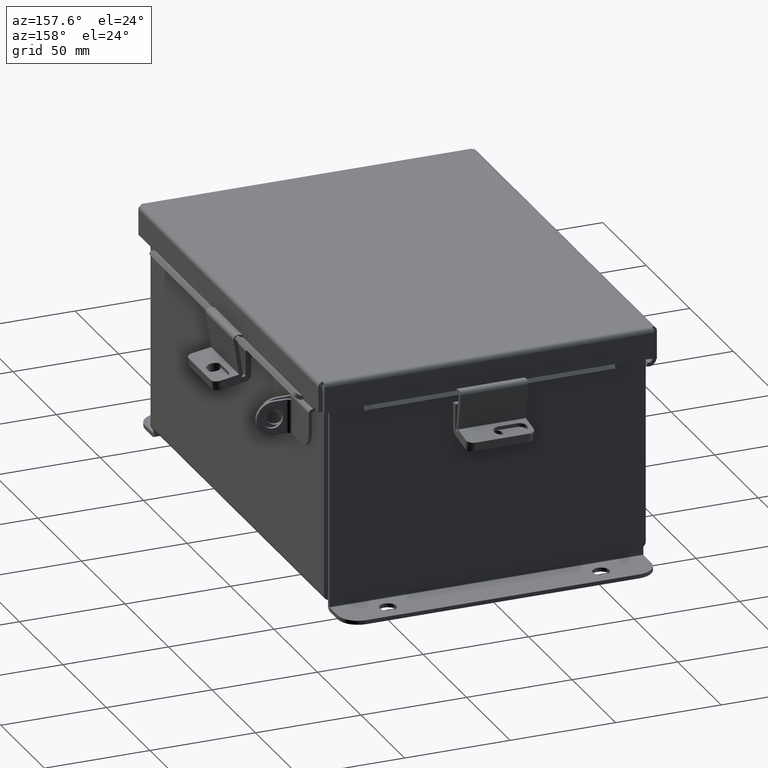
[diagram: clean part render]
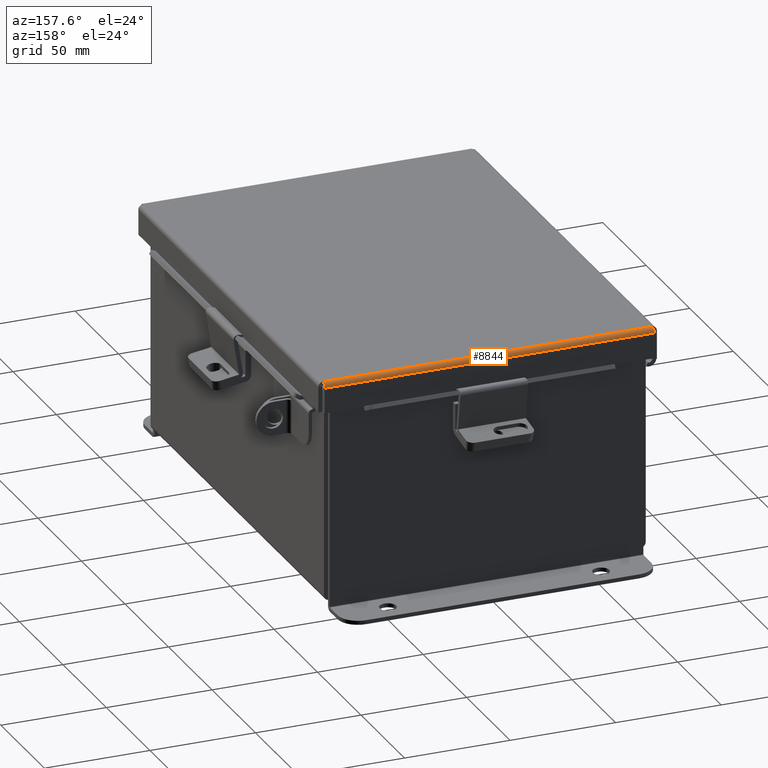
[diagram: same view with one face highlighted and labeled with its STEP entity id]
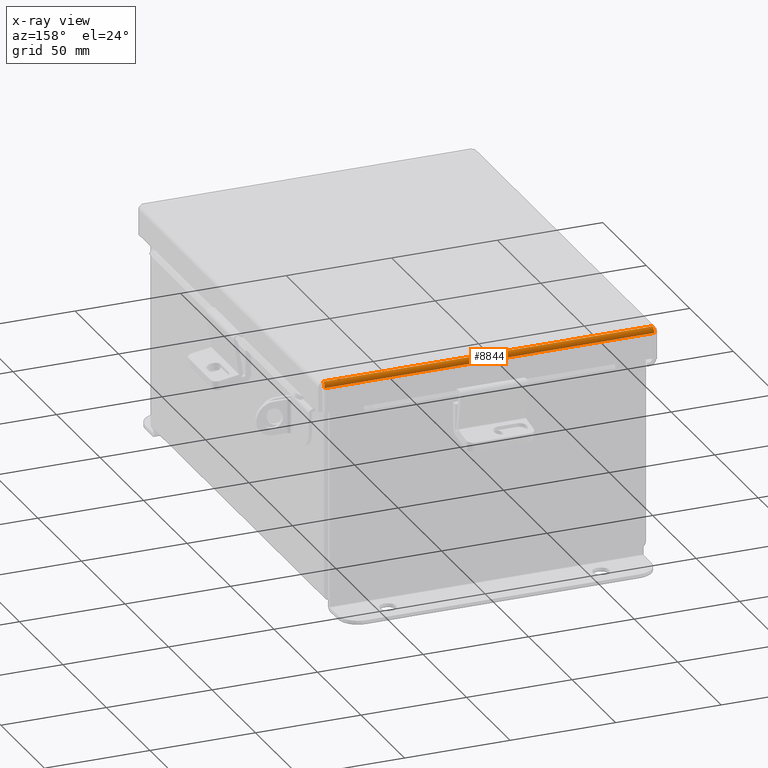
[diagram: x-ray of the same camera — body ghosted, the highlighted face saturated]
A machine part, auxiliary view. The second image highlights one B-rep face of the part: STEP entity #8844.
The next image is the same camera in x-ray: the body ghosted, the highlighted face saturated — about 0% of this face is hidden behind the body in this view.
In plain terms, the highlighted cylindrical surface (edge-blend (fillet) strip) has radius 2.2276 mm, axis along (1, -0, 0).
Its self-contained STEP definition (entity closure, byte-faithful):
#307 = CARTESIAN_POINT ( 'NONE',  ( -3.074478932188133800, 4.068550000000001900, 0.01300000000000065300 ) ) ;
#309 = CARTESIAN_POINT ( 'NONE',  ( 3.074478932188136100, 4.156250000000002700, 0.01300000000000393200 ) ) ;
#487 = VERTEX_POINT ( 'NONE', #9760 ) ;
#792 = EDGE_CURVE ( 'NONE', #13188, #15157, #14006, .T. ) ;
#1190 = CARTESIAN_POINT ( 'NONE',  ( -3.070526310729377400, 4.112717384578529900, -0.06363106625866792000 ) ) ;
#2013 = DIRECTION ( 'NONE',  ( 1.000000000000000000, -2.239330294933626500E-032, -0.0000000000000000000 ) ) ;
#2383 = CARTESIAN_POINT ( 'NONE',  ( -3.069044077682344000, 4.080029903154994900, -0.07469999999999944700 ) ) ;
#2394 = CARTESIAN_POINT ( 'NONE',  ( -3.072008543776410900, 4.138680782078322900, -0.04089574734179957100 ) ) ;
#2657 = CARTESIAN_POINT ( 'NONE',  ( 3.068550000000001000, 4.068550000000001900, -0.07469999999999579800 ) ) ;
#2688 = B_SPLINE_CURVE_WITH_KNOTS ( 'NONE', 3,
 ( #11792, #3525, #14216, #7119, #2394, #8310, #1190, #9519, #2383, #10714 ),
 .UNSPECIFIED., .F., .F.,
 ( 4, 2, 2, 2, 4 ),
 ( 0.0000000000000000000, 0.2500000000000000000, 0.5000000000000000000, 0.7500000000000000000, 1.000000000000000000 ),
 .UNSPECIFIED. ) ;
#2780 = ORIENTED_EDGE ( 'NONE', *, *, #5511, .F. ) ;
#3329 = ORIENTED_EDGE ( 'NONE', *, *, #792, .T. ) ;
#3525 = CARTESIAN_POINT ( 'NONE',  ( -3.073984854505788200, 4.156250000000001800, 0.001520096845007665500 ) ) ;
#3855 = CARTESIAN_POINT ( 'NONE',  ( 3.069538155364690100, 4.091505289458310400, -0.07241740374381074000 ) ) ;
#4377 = VERTEX_POINT ( 'NONE', #12984 ) ;
#4839 = B_SPLINE_CURVE_WITH_KNOTS ( 'NONE', 3,
 ( #2657, #10980, #3855, #12158, #5064, #13326, #6248, #14531, #7447, #309 ),
 .UNSPECIFIED., .F., .F.,
 ( 4, 2, 2, 2, 4 ),
 ( 0.0000000000000000000, 0.2500000000000000000, 0.5000000000000000000, 0.7500000000000000000, 1.000000000000000000 ),
 .UNSPECIFIED. ) ;
#4999 = EDGE_CURVE ( 'NONE', #487, #15157, #4839, .T. ) ;
#5064 = CARTESIAN_POINT ( 'NONE',  ( 3.071020388411724400, 4.122445747341802600, -0.05713078207831989700 ) ) ;
#5119 = EDGE_LOOP ( 'NONE', ( #2780, #13478, #3329, #6356 ) ) ;
#5511 = EDGE_CURVE ( 'NONE', #4377, #487, #13868, .T. ) ;
#5788 = CYLINDRICAL_SURFACE ( 'NONE', #9310, 0.08770000000000026400 ) ;
#6245 = DIRECTION ( 'NONE',  ( 0.0000000000000000000, 1.000000000000000000, -3.358350761880586900E-015 ) ) ;
#6248 = CARTESIAN_POINT ( 'NONE',  ( 3.072502621458758300, 4.145181066258671400, -0.03116738457852745100 ) ) ;
#6356 = ORIENTED_EDGE ( 'NONE', *, *, #4999, .F. ) ;
#7119 = CARTESIAN_POINT ( 'NONE',  ( -3.072502621458755200, 4.145181066258670600, -0.03116738457852744400 ) ) ;
#7447 = CARTESIAN_POINT ( 'NONE',  ( 3.073984854505792200, 4.156250000000002700, 0.001520096845007668700 ) ) ;
#7588 = VECTOR ( 'NONE', #8256, 39.37007874015748100 ) ;
#8256 = DIRECTION ( 'NONE',  ( 1.000000000000000000, 2.258600338820354400E-033, -0.0000000000000000000 ) ) ;
#8310 = CARTESIAN_POINT ( 'NONE',  ( -3.071020388411722200, 4.122445747341801700, -0.05713078207831989000 ) ) ;
#8844 = ADVANCED_FACE ( 'NONE', ( #15227 ), #5788, .T. ) ;
#9310 = AXIS2_PLACEMENT_3D ( 'NONE', #307, #12156, #6245 ) ;
#9519 = CARTESIAN_POINT ( 'NONE',  ( -3.069538155364688800, 4.091505289458310400, -0.07241740374381072700 ) ) ;
#9697 = CARTESIAN_POINT ( 'NONE',  ( -3.074478932188133800, 4.156250000000002700, 0.01300000000000010700 ) ) ;
#9760 = CARTESIAN_POINT ( 'NONE',  ( 3.068550000000001000, 4.068550000000001900, -0.07469999999999579800 ) ) ;
#10005 = CARTESIAN_POINT ( 'NONE',  ( 3.074478932188136100, 4.156250000000002700, 0.01300000000000393200 ) ) ;
#10331 = CARTESIAN_POINT ( 'NONE',  ( 3.156250000000000000, 4.156250000000002700, 0.01299999999999956100 ) ) ;
#10516 = VECTOR ( 'NONE', #2013, 39.37007874015748100 ) ;
#10714 = CARTESIAN_POINT ( 'NONE',  ( -3.068549999999999200, 4.068550000000001900, -0.07469999999999579800 ) ) ;
#10980 = CARTESIAN_POINT ( 'NONE',  ( 3.069044077682345300, 4.080029903154994900, -0.07469999999999943400 ) ) ;
#11792 = CARTESIAN_POINT ( 'NONE',  ( -3.074478932188133800, 4.156250000000002700, 0.01300000000000010700 ) ) ;
#12156 = DIRECTION ( 'NONE',  ( -1.000000000000000000, -2.258600338820354400E-033, 0.0000000000000000000 ) ) ;
#12158 = CARTESIAN_POINT ( 'NONE',  ( 3.070526310729380500, 4.112717384578529900, -0.06363106625866787900 ) ) ;
#12984 = CARTESIAN_POINT ( 'NONE',  ( -3.068549999999999200, 4.068550000000001900, -0.07469999999999579800 ) ) ;
#13188 = VERTEX_POINT ( 'NONE', #9697 ) ;
#13326 = CARTESIAN_POINT ( 'NONE',  ( 3.072008543776413500, 4.138680782078322900, -0.04089574734179958500 ) ) ;
#13478 = ORIENTED_EDGE ( 'NONE', *, *, #14546, .F. ) ;
#13868 = LINE ( 'NONE', #15339, #7588 ) ;
#14006 = LINE ( 'NONE', #10331, #10516 ) ;
#14216 = CARTESIAN_POINT ( 'NONE',  ( -3.073490776823444300, 4.153967403743815000, -0.009955289458308485800 ) ) ;
#14531 = CARTESIAN_POINT ( 'NONE',  ( 3.073490776823447800, 4.153967403743815000, -0.009955289458308482300 ) ) ;
#14546 = EDGE_CURVE ( 'NONE', #13188, #4377, #2688, .T. ) ;
#15157 = VERTEX_POINT ( 'NONE', #10005 ) ;
#15227 = FACE_OUTER_BOUND ( 'NONE', #5119, .T. ) ;
#15339 = CARTESIAN_POINT ( 'NONE',  ( -3.074478932188133800, 4.068550000000001900, -0.07469999999999961400 ) ) ;